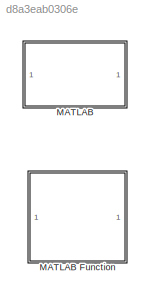
MODEL slx_d8a3eab0306e
KIND library
CONFIG AbsTol = auto
CONFIG EnableMultiTasking = off
CONFIG FixedStep = auto
CONFIG MaxStep = auto
CONFIG MinStep = auto
CONFIG RelTol = 1e-3
CONFIG SampleTimeConstraint = Unconstrained
CONFIG SolverName = VariableStepAuto
CONFIG StartTime = 0.0
CONFIG StopTime = 10.0
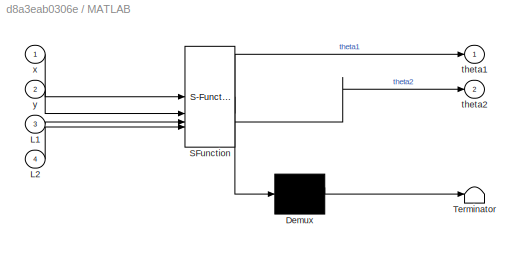
BLOCK [SubSystem] MATLAB
  ErrorFcn = Stateflow.Translate.translate
  PermitHierarchicalResolution = ExplicitOnly
  SFBlockType = MATLAB Function
  TreatAsAtomicUnit = on
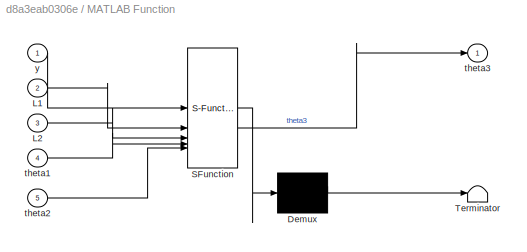
BLOCK [SubSystem] MATLAB Function
  ErrorFcn = Stateflow.Translate.translate
  PermitHierarchicalResolution = ExplicitOnly
  SFBlockType = MATLAB Function
  TreatAsAtomicUnit = on
BLOCK [Demux] MATLAB Function/ Demux 
  Outputs = 1
BLOCK [S-Function] MATLAB Function/ SFunction 
  EnableBusSupport = off
  FunctionName = sf_sfun
  PortCounts = [5 2]
  SFcnIsStateOwnerBlock = off
  SFunctionDeploymentMode = off
  Tag = Stateflow S-Function 2
BLOCK [Terminator] MATLAB Function/ Terminator 
BLOCK [Inport] MATLAB Function/L1
  Port = 2
BLOCK [Inport] MATLAB Function/L2
  Port = 3
BLOCK [Inport] MATLAB Function/theta1
  Port = 4
BLOCK [Inport] MATLAB Function/theta2
  Port = 5
BLOCK [Outport] MATLAB Function/theta3
BLOCK [Inport] MATLAB Function/y
BLOCK [Demux] MATLAB/ Demux 
  Outputs = 1
BLOCK [S-Function] MATLAB/ SFunction 
  EnableBusSupport = on
  FunctionName = sf_sfun
  PortCounts = [4 3]
  SFcnIsStateOwnerBlock = off
  SFunctionDeploymentMode = off
  Tag = Stateflow S-Function 81
BLOCK [Terminator] MATLAB/ Terminator 
BLOCK [Inport] MATLAB/L1
  Port = 3
BLOCK [Inport] MATLAB/L2
  Port = 4
BLOCK [Outport] MATLAB/theta1
BLOCK [Outport] MATLAB/theta2
  Port = 2
BLOCK [Inport] MATLAB/x
BLOCK [Inport] MATLAB/y
  Port = 2
CHART MATLAB Function states=1 transitions=1
  STATE_LABEL 'eML_blk_kernel()'
  STATE_LABEL 'SCRIPT:\nfunction theta3 = latAng(y, L1, L2, theta1, theta2)\n\nl = cos(theta1)*(L1 + L2*cos(theta2));\n\ntheta3 = asin(y/l);\n'
CHART MATLAB states=1 transitions=1
  STATE_LABEL 'eML_blk_kernel()'
  STATE_LABEL 'SCRIPT:\nfunction [theta1, theta2] = ang(x,y,L1,L2)\nx;\ny;\n(x.^2+y.^2-L1.^2-L2.^2) / (2*L1*L2);\ntheta2 = acos((x.^2+y.^2-L1.^2-L2.^2) / (2*L1*L2));\nbeta = asin((L2*sin(theta2))./((x.^2+y.^2).^0.5));\ntheta1 = asin(x./((x.^2+y.^2).^0.5)) + beta;\nend'
CHART  states=0 transitions=0
CHART  states=0 transitions=0
